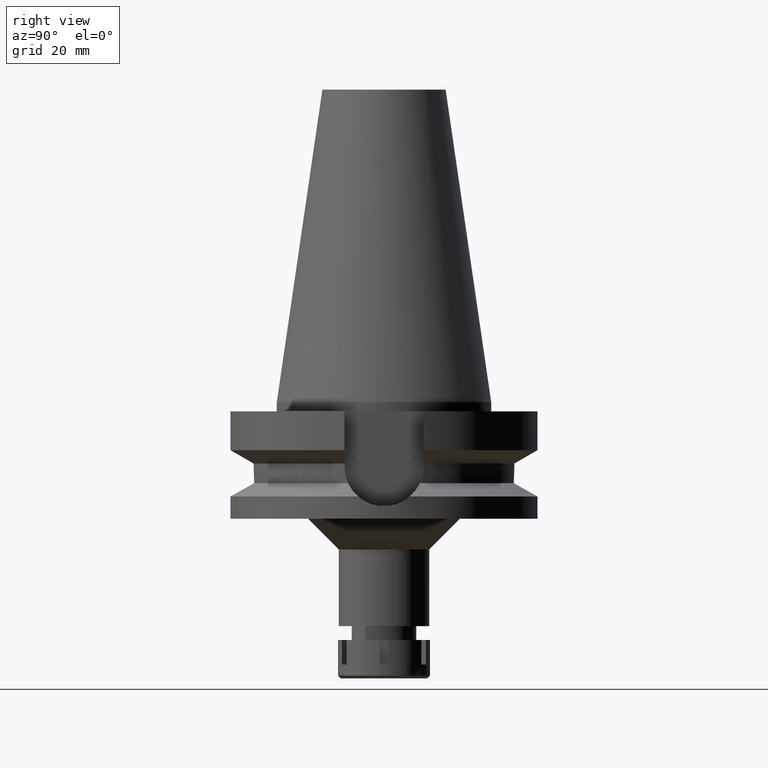
[diagram: clean part render]
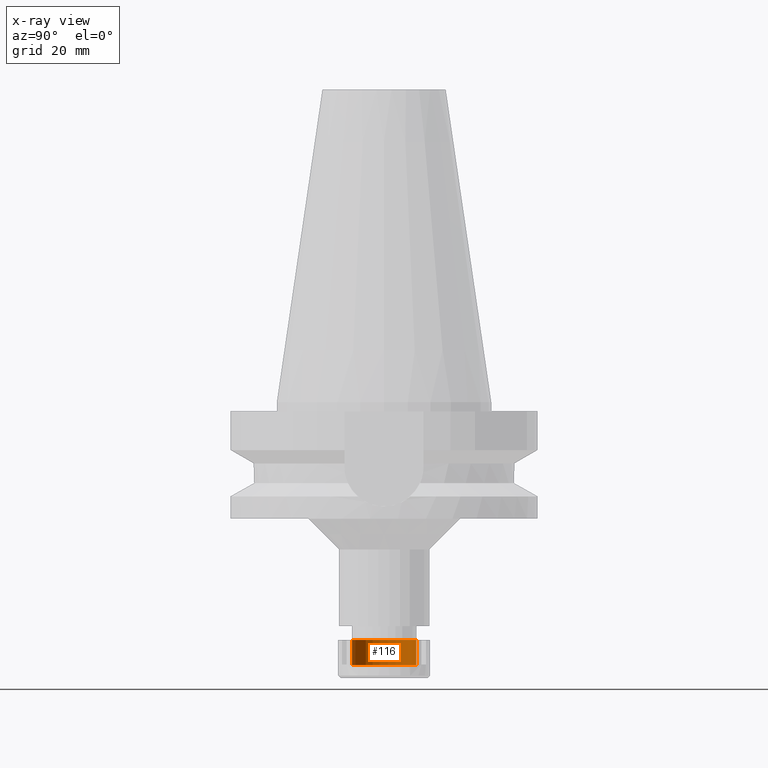
[diagram: x-ray — body ghosted, one internal face saturated and labeled with its STEP entity id]
A machine part, right view, then the same camera in x-ray: the body is ghosted and one INTERNAL B-rep face — a face not visible from any outside direction — is saturated and labeled: STEP entity #116.
In plain terms, the highlighted cylindrical surface (edge-blend (fillet) strip) has radius 10.5 mm, axis along (0, 0, -1).
Its self-contained STEP definition (entity closure, byte-faithful):
#101 = VERTEX_POINT ( 'NONE', #1648 ) ;
#116 = ADVANCED_FACE ( 'NONE', ( #3601 ), #2473, .F. ) ;
#311 = CARTESIAN_POINT ( 'NONE',  ( 0.0000000000000000000, 0.0000000000000000000, -8.200000000000001066 ) ) ;
#387 = CARTESIAN_POINT ( 'NONE',  ( 0.0000000000000000000, -10.50000000000000000, -8.200000000000001066 ) ) ;
#416 = ORIENTED_EDGE ( 'NONE', *, *, #2262, .T. ) ;
#541 = ORIENTED_EDGE ( 'NONE', *, *, #587, .F. ) ;
#587 = EDGE_CURVE ( 'NONE', #1650, #2026, #2426, .T. ) ;
#880 = DIRECTION ( 'NONE',  ( 0.0000000000000000000, -1.000000000000000000, 0.0000000000000000000 ) ) ;
#972 = VERTEX_POINT ( 'NONE', #3406 ) ;
#979 = VECTOR ( 'NONE', #1042, 1000.000000000000000 ) ;
#1002 = DIRECTION ( 'NONE',  ( 0.0000000000000000000, 0.0000000000000000000, 1.000000000000000000 ) ) ;
#1042 = DIRECTION ( 'NONE',  ( 0.0000000000000000000, 0.0000000000000000000, 1.000000000000000000 ) ) ;
#1077 = DIRECTION ( 'NONE',  ( 0.0000000000000000000, 1.000000000000000000, 0.0000000000000000000 ) ) ;
#1089 = LINE ( 'NONE', #2220, #979 ) ;
#1300 = EDGE_CURVE ( 'NONE', #101, #972, #1089, .T. ) ;
#1331 = AXIS2_PLACEMENT_3D ( 'NONE', #3607, #2495, #1077 ) ;
#1596 = CARTESIAN_POINT ( 'NONE',  ( 0.0000000000000000000, -10.50000000000000000, -8.200000000000001066 ) ) ;
#1648 = CARTESIAN_POINT ( 'NONE',  ( 0.0000000000000000000, 10.50000000000000000, -8.200000000000001066 ) ) ;
#1650 = VERTEX_POINT ( 'NONE', #1596 ) ;
#1658 = EDGE_LOOP ( 'NONE', ( #3368, #541, #416, #1994 ) ) ;
#1726 = DIRECTION ( 'NONE',  ( 0.0000000000000000000, -1.000000000000000000, 0.0000000000000000000 ) ) ;
#1747 = CIRCLE ( 'NONE', #1870, 10.50000000000000000 ) ;
#1769 = DIRECTION ( 'NONE',  ( 0.0000000000000000000, 0.0000000000000000000, -1.000000000000000000 ) ) ;
#1870 = AXIS2_PLACEMENT_3D ( 'NONE', #311, #1769, #1726 ) ;
#1994 = ORIENTED_EDGE ( 'NONE', *, *, #1300, .T. ) ;
#2026 = VERTEX_POINT ( 'NONE', #2709 ) ;
#2037 = EDGE_CURVE ( 'NONE', #972, #2026, #3604, .T. ) ;
#2187 = CARTESIAN_POINT ( 'NONE',  ( 0.0000000000000000000, 0.0000000000000000000, 0.0000000000000000000 ) ) ;
#2220 = CARTESIAN_POINT ( 'NONE',  ( 0.0000000000000000000, 10.50000000000000000, -8.200000000000001066 ) ) ;
#2262 = EDGE_CURVE ( 'NONE', #1650, #101, #1747, .T. ) ;
#2426 = LINE ( 'NONE', #387, #3350 ) ;
#2473 = CYLINDRICAL_SURFACE ( 'NONE', #2545, 10.50000000000000000 ) ;
#2495 = DIRECTION ( 'NONE',  ( 0.0000000000000000000, 0.0000000000000000000, 1.000000000000000000 ) ) ;
#2545 = AXIS2_PLACEMENT_3D ( 'NONE', #2187, #2984, #880 ) ;
#2709 = CARTESIAN_POINT ( 'NONE',  ( 0.0000000000000000000, -10.50000000000000000, 0.0000000000000000000 ) ) ;
#2984 = DIRECTION ( 'NONE',  ( 0.0000000000000000000, 0.0000000000000000000, -1.000000000000000000 ) ) ;
#3350 = VECTOR ( 'NONE', #1002, 1000.000000000000000 ) ;
#3368 = ORIENTED_EDGE ( 'NONE', *, *, #2037, .T. ) ;
#3406 = CARTESIAN_POINT ( 'NONE',  ( 0.0000000000000000000, 10.50000000000000000, 0.0000000000000000000 ) ) ;
#3601 = FACE_OUTER_BOUND ( 'NONE', #1658, .T. ) ;
#3604 = CIRCLE ( 'NONE', #1331, 10.50000000000000000 ) ;
#3607 = CARTESIAN_POINT ( 'NONE',  ( 0.0000000000000000000, 0.0000000000000000000, 0.0000000000000000000 ) ) ;